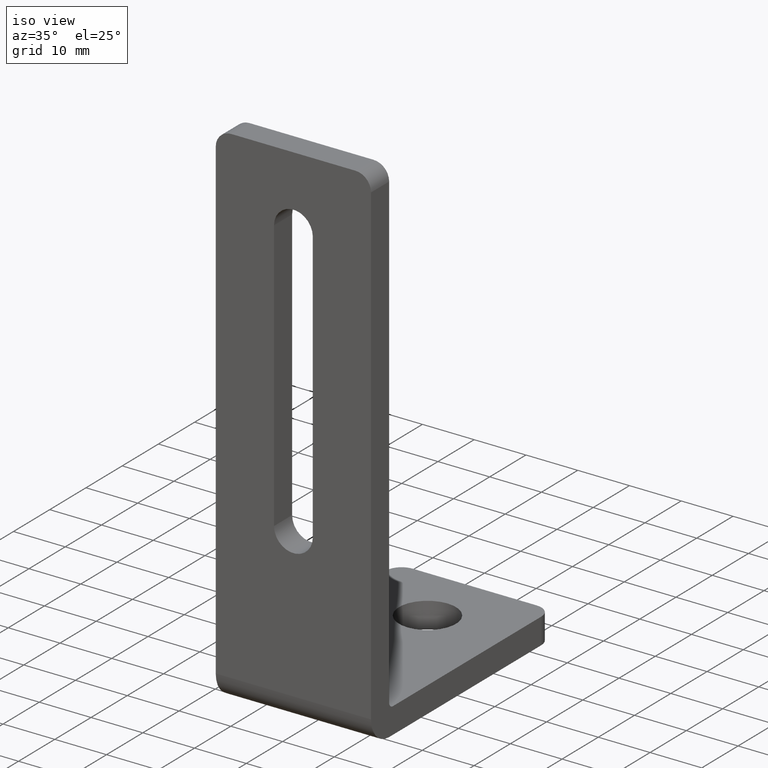
[diagram: clean part render]
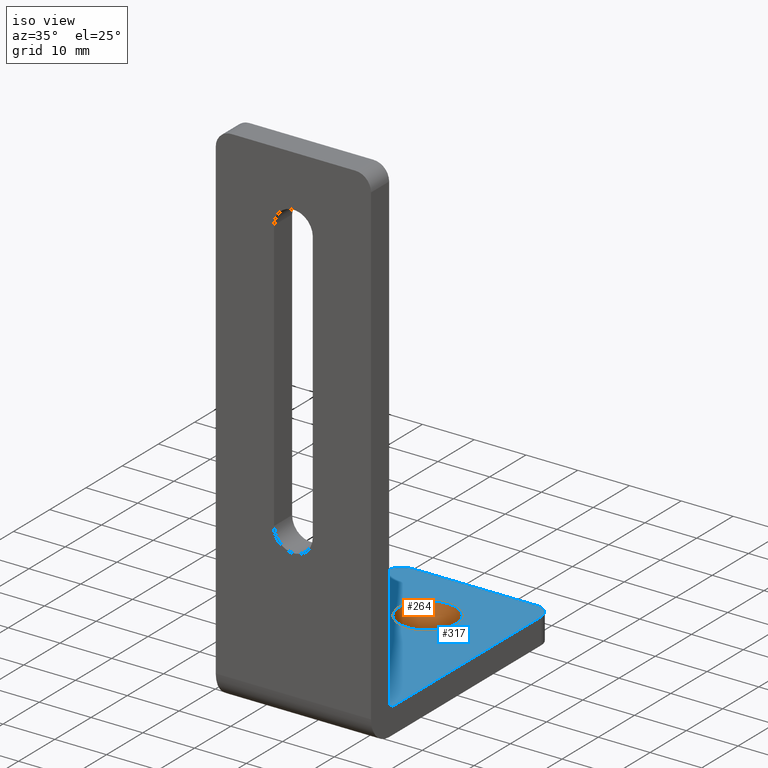
[diagram: same view with the hole feature highlighted: cylindrical wall and planar end face, labeled with their STEP entity ids]
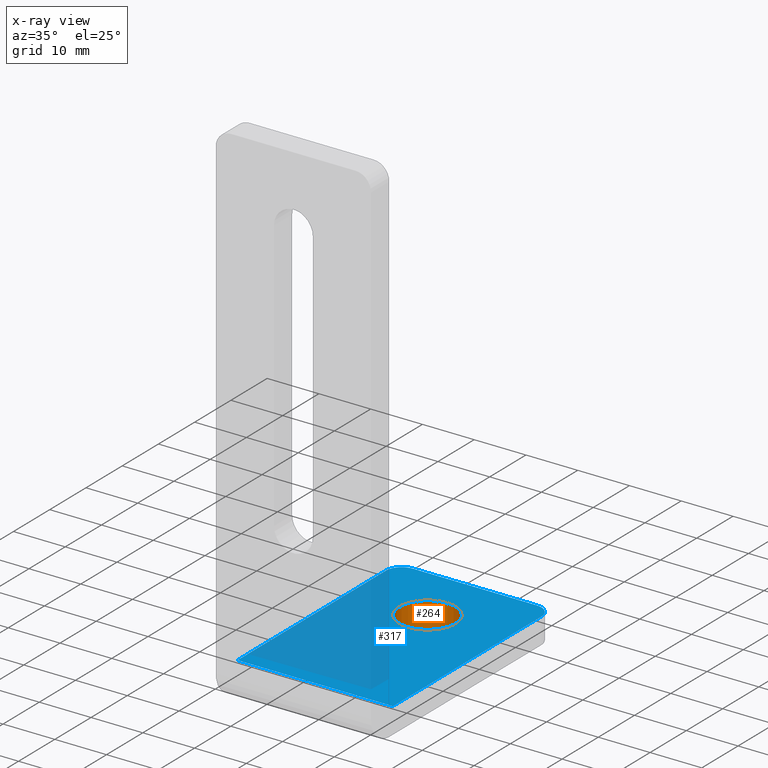
[diagram: x-ray of the same camera — body ghosted, the hole faces saturated]
A machine part, iso view. The highlighted faces form one hole feature of diameter 11 mm: the cylindrical wall (entity #264, orange) and its adjacent planar end face (entity #317, blue) — they share a circular edge in the B-rep.
The next image is the same camera in x-ray (body ghosted, the hole faces saturated) — the bore reads through the body.
Wall:
#214=CARTESIAN_POINT('',(0.0,3.061617E-016,5.0));
#215=DIRECTION('',(0.0,6.123234E-017,1.0));
#216=DIRECTION('',(-6.123234E-017,-1.0,6.123234E-017));
#217=AXIS2_PLACEMENT_3D('',#214,#215,#216);
#218=CYLINDRICAL_SURFACE('',#217,5.500000000000000);
#219=CARTESIAN_POINT('',(0.0,-5.500000000000000,5.0));
#220=VERTEX_POINT('',#219);
#221=CARTESIAN_POINT('',(0.0,-5.500000000000000,3.367779E-016));
#222=VERTEX_POINT('',#221);
#223=CARTESIAN_POINT('',(0.0,-5.500000000000000,5.0));
#224=DIRECTION('',(0.0,0.0,-1.0));
#225=VECTOR('',#224,5.0);
#226=LINE('',#223,#225);
#227=EDGE_CURVE('',#220,#222,#226,.T.);
#228=ORIENTED_EDGE('',*,*,#227,.T.);
#229=CARTESIAN_POINT('',(3.367779E-016,5.500000000000000,-3.367779E-016));
#230=VERTEX_POINT('',#229);
#231=CARTESIAN_POINT('',(0.0,0.0,0.0));
#232=DIRECTION('',(0.0,6.123234E-017,1.0));
#233=DIRECTION('',(-6.123234E-017,-1.0,6.123234E-017));
#234=AXIS2_PLACEMENT_3D('',#231,#232,#233);
#235=CIRCLE('',#234,5.500000000000000);
#236=EDGE_CURVE('',#230,#222,#235,.T.);
#237=ORIENTED_EDGE('',*,*,#236,.F.);
#238=CARTESIAN_POINT('',(0.0,0.0,0.0));
#239=DIRECTION('',(0.0,6.123234E-017,1.0));
#240=DIRECTION('',(-6.123234E-017,-1.0,6.123234E-017));
#241=AXIS2_PLACEMENT_3D('',#238,#239,#240);
#242=CIRCLE('',#241,5.500000000000000);
#243=EDGE_CURVE('',#222,#230,#242,.T.);
#244=ORIENTED_EDGE('',*,*,#243,.F.);
#245=ORIENTED_EDGE('',*,*,#227,.F.);
#246=CARTESIAN_POINT('',(3.367779E-016,5.500000000000000,5.0));
#247=VERTEX_POINT('',#246);
#248=CARTESIAN_POINT('',(-2.736911E-048,3.061617E-016,5.0));
#249=DIRECTION('',(0.0,6.123234E-017,1.0));
#250=DIRECTION('',(-6.123234E-017,-1.0,6.123234E-017));
#251=AXIS2_PLACEMENT_3D('',#248,#249,#250);
#252=CIRCLE('',#251,5.500000000000000);
#253=EDGE_CURVE('',#220,#247,#252,.T.);
#254=ORIENTED_EDGE('',*,*,#253,.T.);
#255=CARTESIAN_POINT('',(-2.736911E-048,3.061617E-016,5.0));
#256=DIRECTION('',(0.0,6.123234E-017,1.0));
#257=DIRECTION('',(-6.123234E-017,-1.0,6.123234E-017));
#258=AXIS2_PLACEMENT_3D('',#255,#256,#257);
#259=CIRCLE('',#258,5.500000000000000);
#260=EDGE_CURVE('',#247,#220,#259,.T.);
#261=ORIENTED_EDGE('',*,*,#260,.T.);
#262=EDGE_LOOP('',(#228,#237,#244,#245,#254,#261));
#263=FACE_OUTER_BOUND('',#262,.T.);
#264=ADVANCED_FACE('',(#263),#218,.F.);
End face:
#7=CARTESIAN_POINT('',(-15.0,-30.999999999998181,5.000000000000002));
#8=VERTEX_POINT('',#7);
#26=CARTESIAN_POINT('',(15.0,-30.999999999998181,5.000000000000002));
#27=VERTEX_POINT('',#26);
#35=CARTESIAN_POINT('',(-15.0,-30.999999999998181,5.000000000000002));
#36=DIRECTION('',(1.0,0.0,0.0));
#37=VECTOR('',#36,30.0);
#38=LINE('',#35,#37);
#39=EDGE_CURVE('',#8,#27,#38,.T.);
#219=CARTESIAN_POINT('',(0.0,-5.500000000000000,5.0));
#220=VERTEX_POINT('',#219);
#246=CARTESIAN_POINT('',(3.367779E-016,5.500000000000000,5.0));
#247=VERTEX_POINT('',#246);
#248=CARTESIAN_POINT('',(-2.736911E-048,3.061617E-016,5.0));
#249=DIRECTION('',(0.0,6.123234E-017,1.0));
#250=DIRECTION('',(-6.123234E-017,-1.0,6.123234E-017));
#251=AXIS2_PLACEMENT_3D('',#248,#249,#250);
#252=CIRCLE('',#251,5.500000000000000);
#253=EDGE_CURVE('',#220,#247,#252,.T.);
#255=CARTESIAN_POINT('',(-2.736911E-048,3.061617E-016,5.0));
#256=DIRECTION('',(0.0,6.123234E-017,1.0));
#257=DIRECTION('',(-6.123234E-017,-1.0,6.123234E-017));
#258=AXIS2_PLACEMENT_3D('',#255,#256,#257);
#259=CIRCLE('',#258,5.500000000000000);
#260=EDGE_CURVE('',#247,#220,#259,.T.);
#265=CARTESIAN_POINT('',(-15.0,13.000000000001819,4.999999999999999));
#266=DIRECTION('',(0.0,0.0,1.0));
#267=DIRECTION('',(0.0,-1.0,0.0));
#268=AXIS2_PLACEMENT_3D('',#265,#266,#267);
#269=PLANE('',#268);
#270=CARTESIAN_POINT('',(12.0,13.000000000001819,4.999999999999999));
#271=VERTEX_POINT('',#270);
#272=CARTESIAN_POINT('',(15.0,10.000000000001819,4.999999999999999));
#273=VERTEX_POINT('',#272);
#274=CARTESIAN_POINT('',(12.0,10.000000000001819,4.999999999999999));
#275=DIRECTION('',(0.0,-6.123234E-017,-1.0));
#276=DIRECTION('',(0.0,1.0,-6.123234E-017));
#277=AXIS2_PLACEMENT_3D('',#274,#275,#276);
#278=CIRCLE('',#277,3.0);
#279=EDGE_CURVE('',#271,#273,#278,.T.);
#280=ORIENTED_EDGE('',*,*,#279,.F.);
#281=CARTESIAN_POINT('',(-12.0,13.000000000001819,4.999999999999999));
#282=VERTEX_POINT('',#281);
#283=CARTESIAN_POINT('',(-12.0,13.000000000001819,4.999999999999999));
#284=DIRECTION('',(1.0,0.0,0.0));
#285=VECTOR('',#284,24.0);
#286=LINE('',#283,#285);
#287=EDGE_CURVE('',#282,#271,#286,.T.);
#288=ORIENTED_EDGE('',*,*,#287,.F.);
#289=CARTESIAN_POINT('',(-15.0,10.000000000001819,4.999999999999999));
#290=VERTEX_POINT('',#289);
#291=CARTESIAN_POINT('',(-12.0,10.000000000001819,4.999999999999999));
#292=DIRECTION('',(0.0,6.123234E-017,1.0));
#293=DIRECTION('',(0.0,1.0,-6.123234E-017));
#294=AXIS2_PLACEMENT_3D('',#291,#292,#293);
#295=CIRCLE('',#294,3.0);
#296=EDGE_CURVE('',#282,#290,#295,.T.);
#297=ORIENTED_EDGE('',*,*,#296,.T.);
#298=CARTESIAN_POINT('',(-14.999999999999998,10.000000000001819,4.999999999999999));
#299=DIRECTION('',(0.0,-1.0,0.0));
#300=VECTOR('',#299,41.0);
#301=LINE('',#298,#300);
#302=EDGE_CURVE('',#290,#8,#301,.T.);
#303=ORIENTED_EDGE('',*,*,#302,.T.);
#304=ORIENTED_EDGE('',*,*,#39,.T.);
#305=CARTESIAN_POINT('',(15.000000000000002,10.000000000001819,4.999999999999999));
#306=DIRECTION('',(0.0,-1.0,0.0));
#307=VECTOR('',#306,41.0);
#308=LINE('',#305,#307);
#309=EDGE_CURVE('',#273,#27,#308,.T.);
#310=ORIENTED_EDGE('',*,*,#309,.F.);
#311=EDGE_LOOP('',(#280,#288,#297,#303,#304,#310));
#312=FACE_OUTER_BOUND('',#311,.T.);
#313=ORIENTED_EDGE('',*,*,#260,.F.);
#314=ORIENTED_EDGE('',*,*,#253,.F.);
#315=EDGE_LOOP('',(#313,#314));
#316=FACE_BOUND('',#315,.T.);
#317=ADVANCED_FACE('',(#312,#316),#269,.T.);